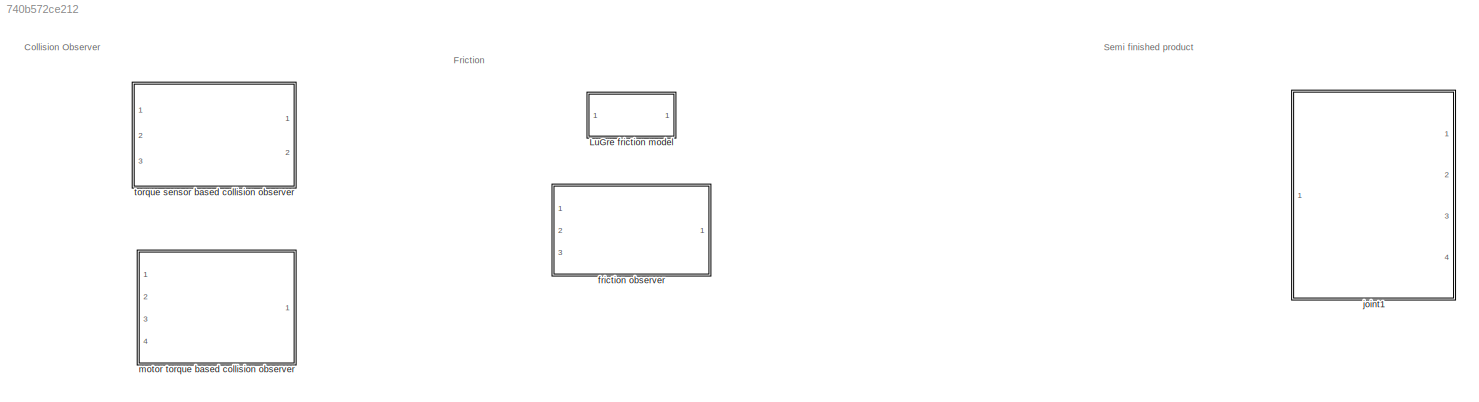
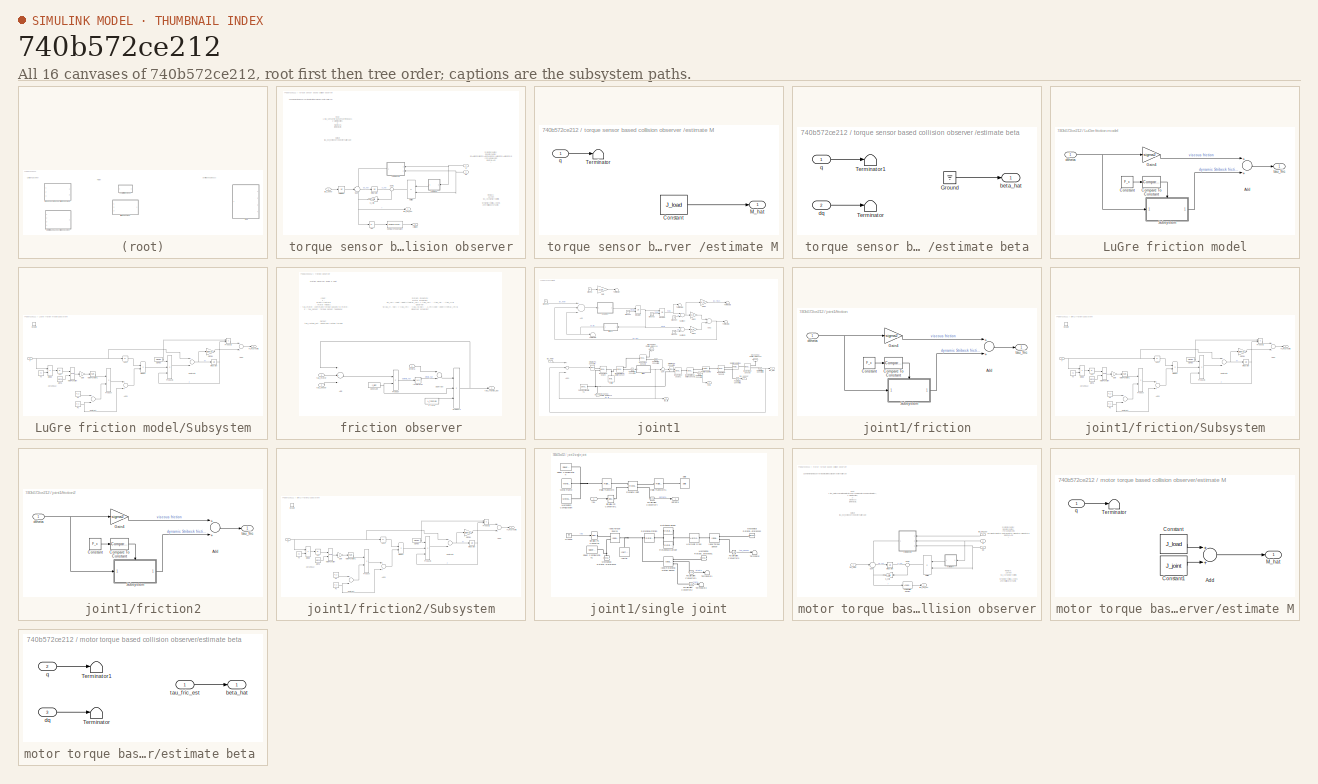
[diagram: thumbnail index - all 16 canvases of the model, root first then tree order]
MODEL slx_740b572ce212
KIND library
CONFIG AbsTol = auto
CONFIG EnableMultiTasking = off
CONFIG FixedStep = auto
CONFIG MaxStep = auto
CONFIG MinStep = auto
CONFIG RelTol = 1e-3
CONFIG SampleTimeConstraint = Unconstrained
CONFIG Solver = VariableStepAuto
CONFIG SolverName = VariableStepAuto
CONFIG StartTime = 0.0
CONFIG StopTime = 10.0
BLOCK [SubSystem]  torque sensor based collision observer 
  Ports = [3, 2]
  RequestExecContextInheritance = off
BLOCK [Abs]  torque sensor based collision observer /Abs
  SaturateOnIntegerOverflow = off
BLOCK [Reference]  torque sensor based collision observer /Compare To Constant  REF=simulink/Logic and Bit
Operations/Compare
To Constant
  Ports = [1, 1]
  SourceBlock = simulink/Logic and Bit\nOperations/Compare\nTo Constant
  SourceProductBaseCode = SL
  SourceProductName = Simulink
  SourceType = Compare To Constant
BLOCK [Integrator]  torque sensor based collision observer /Integrator
  Ports = [1, 1]
BLOCK [Gain]  torque sensor based collision observer /K_colli
  Gain = K0_colli
  OutDataTypeStr = Inherit: Inherit via internal rule
  ParamDataTypeStr = Inherit: Inherit via internal rule
  SaturateOnIntegerOverflow = off
BLOCK [Product]  torque sensor based collision observer /Multiply
  InputSameDT = off
  Multiplication = Matrix(*)
  OutDataTypeStr = Inherit: Inherit via internal rule
  Ports = [2, 1]
  RndMeth = Floor
  SaturateOnIntegerOverflow = off
BLOCK [Sum]  torque sensor based collision observer /Sum
  IconShape = round
  InputSameDT = off
  Inputs = -|+|+
  OutDataTypeStr = Inherit: Inherit via internal rule
  Ports = [3, 1]
  SaturateOnIntegerOverflow = off
BLOCK [Sum]  torque sensor based collision observer /Sum1
  IconShape = round
  InputSameDT = off
  Inputs = -+
  OutDataTypeStr = Inherit: Inherit via internal rule
  Ports = [2, 1]
  SaturateOnIntegerOverflow = off
BLOCK [UnitDelay]  torque sensor based collision observer /Unit Delay
  InputProcessing = Elements as channels (sample based)
  SampleTime = -1
BLOCK [Outport]  torque sensor based collision observer /collision
  IconDisplay = Port number
  Port = 2
BLOCK [Inport]  torque sensor based collision observer /dq
  IconDisplay = Port number
  Port = 3
BLOCK [SubSystem]  torque sensor based collision observer /estimate M
  Ports = [1, 1]
  RequestExecContextInheritance = off
BLOCK [Constant]  torque sensor based collision observer /estimate M/Constant
  Value = J_load
BLOCK [Outport]  torque sensor based collision observer /estimate M/M_hat
  IconDisplay = Port number
BLOCK [Terminator]  torque sensor based collision observer /estimate M/Terminator
BLOCK [Inport]  torque sensor based collision observer /estimate M/q
  IconDisplay = Port number
BLOCK [SubSystem]  torque sensor based collision observer /estimate beta 
  Ports = [2, 1]
  RequestExecContextInheritance = off
BLOCK [Ground]  torque sensor based collision observer /estimate beta /Ground
BLOCK [Terminator]  torque sensor based collision observer /estimate beta /Terminator
BLOCK [Terminator]  torque sensor based collision observer /estimate beta /Terminator1
BLOCK [Outport]  torque sensor based collision observer /estimate beta /beta_hat
  IconDisplay = Port number
BLOCK [Inport]  torque sensor based collision observer /estimate beta /dq
  IconDisplay = Port number
  Port = 2
BLOCK [Inport]  torque sensor based collision observer /estimate beta /q
  IconDisplay = Port number
BLOCK [Inport]  torque sensor based collision observer /q
  IconDisplay = Port number
  Port = 2
BLOCK [Outport]  torque sensor based collision observer /tau_ext_est
  IconDisplay = Port number
BLOCK [Inport]  torque sensor based collision observer /tau_senor
  IconDisplay = Port number
BLOCK [SubSystem] LuGre friction model
  Ports = [1, 1]
  RequestExecContextInheritance = off
BLOCK [Sum] LuGre friction model/Add
  InputSameDT = off
  OutDataTypeStr = Inherit: Inherit via internal rule
  Ports = [2, 1]
  SaturateOnIntegerOverflow = off
BLOCK [Reference] LuGre friction model/Compare To Constant  REF=simulink/Logic and Bit
Operations/Compare
To Constant
  Ports = [1, 1]
  SourceBlock = simulink/Logic and Bit\nOperations/Compare\nTo Constant
  SourceProductBaseCode = SL
  SourceProductName = Simulink
  SourceType = Compare To Constant
BLOCK [Constant] LuGre friction model/Constant
  Value = F_c
BLOCK [Gain] LuGre friction model/Gain4
  Gain = sigma2
  OutDataTypeStr = Inherit: Inherit via internal rule
  ParamDataTypeStr = Inherit: Inherit via internal rule
  SaturateOnIntegerOverflow = off
BLOCK [SubSystem] LuGre friction model/Subsystem
  Ports = [1, 1, 1]
  RequestExecContextInheritance = off
BLOCK [Abs] LuGre friction model/Subsystem/Abs
  SaturateOnIntegerOverflow = off
BLOCK [Abs] LuGre friction model/Subsystem/Abs1
  SaturateOnIntegerOverflow = off
BLOCK [Sum] LuGre friction model/Subsystem/Add1
  InputSameDT = off
  OutDataTypeStr = Inherit: Inherit via internal rule
  Ports = [2, 1]
  SaturateOnIntegerOverflow = off
BLOCK [Sum] LuGre friction model/Subsystem/Add2
  InputSameDT = off
  OutDataTypeStr = Inherit: Inherit via internal rule
  Ports = [2, 1]
  SaturateOnIntegerOverflow = off
BLOCK [Product] LuGre friction model/Subsystem/Divide
  InputSameDT = off
  Inputs = */
  OutDataTypeStr = Inherit: Inherit via internal rule
  Ports = [2, 1]
  RndMeth = Floor
  SaturateOnIntegerOverflow = off
BLOCK [Product] LuGre friction model/Subsystem/Divide1
  InputSameDT = off
  Inputs = */
  OutDataTypeStr = Inherit: Inherit via internal rule
  Ports = [2, 1]
  RndMeth = Floor
  SaturateOnIntegerOverflow = off
BLOCK [EnablePort] LuGre friction model/Subsystem/Enable
  Ports = []
  StatesWhenEnabling = reset
BLOCK [Outport] LuGre friction model/Subsystem/F_fric dynamic
  IconDisplay = Port number
  InitialOutput = 0
  OutputWhenDisabled = reset
BLOCK [Constant] LuGre friction model/Subsystem/Fc
  Value = F_c
BLOCK [Constant] LuGre friction model/Subsystem/Fs
  Value = F_s
BLOCK [Gain] LuGre friction model/Subsystem/Gain
  Gain = -1
  OutDataTypeStr = Inherit: Inherit via internal rule
  ParamDataTypeStr = Inherit: Inherit via internal rule
  SaturateOnIntegerOverflow = off
BLOCK [Integrator] LuGre friction model/Subsystem/Integrator
  Ports = [1, 1]
BLOCK [Math] LuGre friction model/Subsystem/Math Function
  Operator = pow
  Ports = [2, 1]
BLOCK [Math] LuGre friction model/Subsystem/Math Function1
  Ports = [1, 1]
BLOCK [Product] LuGre friction model/Subsystem/Product
  InputSameDT = off
  OutDataTypeStr = Inherit: Inherit via internal rule
  Ports = [2, 1]
  RndMeth = Floor
  SaturateOnIntegerOverflow = off
BLOCK [Product] LuGre friction model/Subsystem/Product1
  InputSameDT = off
  Inputs = 3
  OutDataTypeStr = Inherit: Inherit via internal rule
  Ports = [3, 1]
  RndMeth = Floor
  SaturateOnIntegerOverflow = off
BLOCK [Product] LuGre friction model/Subsystem/Product2
  InputSameDT = off
  OutDataTypeStr = Inherit: Inherit via internal rule
  Ports = [2, 1]
  RndMeth = Floor
  SaturateOnIntegerOverflow = off
BLOCK [Sum] LuGre friction model/Subsystem/Subtract
  InputSameDT = off
  Inputs = +-
  OutDataTypeStr = Inherit: Inherit via internal rule
  Ports = [2, 1]
  SaturateOnIntegerOverflow = off
BLOCK [Sum] LuGre friction model/Subsystem/Subtract1
  InputSameDT = off
  Inputs = +-
  OutDataTypeStr = Inherit: Inherit via internal rule
  Ports = [2, 1]
  SaturateOnIntegerOverflow = off
BLOCK [Constant] LuGre friction model/Subsystem/alpha
  Value = alpha
BLOCK [Constant] LuGre friction model/Subsystem/sigma0
  Value = sigma0
BLOCK [Gain] LuGre friction model/Subsystem/sigma1
  Gain = sigma1
  OutDataTypeStr = Inherit: Inherit via internal rule
  ParamDataTypeStr = Inherit: Inherit via internal rule
  SaturateOnIntegerOverflow = off
BLOCK [Inport] LuGre friction model/Subsystem/v
  IconDisplay = Port number
BLOCK [Constant] LuGre friction model/Subsystem/vs
  Value = vs
BLOCK [Inport] LuGre friction model/dtheta
  IconDisplay = Port number
BLOCK [Outport] LuGre friction model/tau_fric
  IconDisplay = Port number
BLOCK [SubSystem] friction observer
  Ports = [3, 1]
  RequestExecContextInheritance = off
BLOCK [Sum] friction observer/Add
  InputSameDT = off
  Inputs = -+-
  OutDataTypeStr = Inherit: Inherit via internal rule
  Ports = [3, 1]
  SaturateOnIntegerOverflow = off
BLOCK [Constant] friction observer/Constant
  Value = J_joint
BLOCK [Integrator] friction observer/Integrator
  Ports = [1, 1]
BLOCK [Constant] friction observer/L (1//s)
  Value = L_fricObs
BLOCK [Product] friction observer/Product
  InputSameDT = off
  Inputs = */
  OutDataTypeStr = Inherit: Inherit via internal rule
  Ports = [2, 1]
  RndMeth = Floor
  SaturateOnIntegerOverflow = off
BLOCK [Product] friction observer/Product1
  InputSameDT = off
  Inputs = 3
  OutDataTypeStr = Inherit: Inherit via internal rule
  Ports = [3, 1]
  RndMeth = Floor
  SaturateOnIntegerOverflow = off
BLOCK [Sum] friction observer/Subtract
  InputSameDT = off
  Inputs = -+
  OutDataTypeStr = Inherit: Inherit via internal rule
  Ports = [2, 1]
  SaturateOnIntegerOverflow = off
BLOCK [Inport] friction observer/dtheta
  IconDisplay = Port number
BLOCK [Outport] friction observer/tau_friction_est
  IconDisplay = Port number
BLOCK [Inport] friction observer/tau_motor
  IconDisplay = Port number
  Port = 2
BLOCK [Inport] friction observer/tau_sensor
  IconDisplay = Port number
  Port = 3
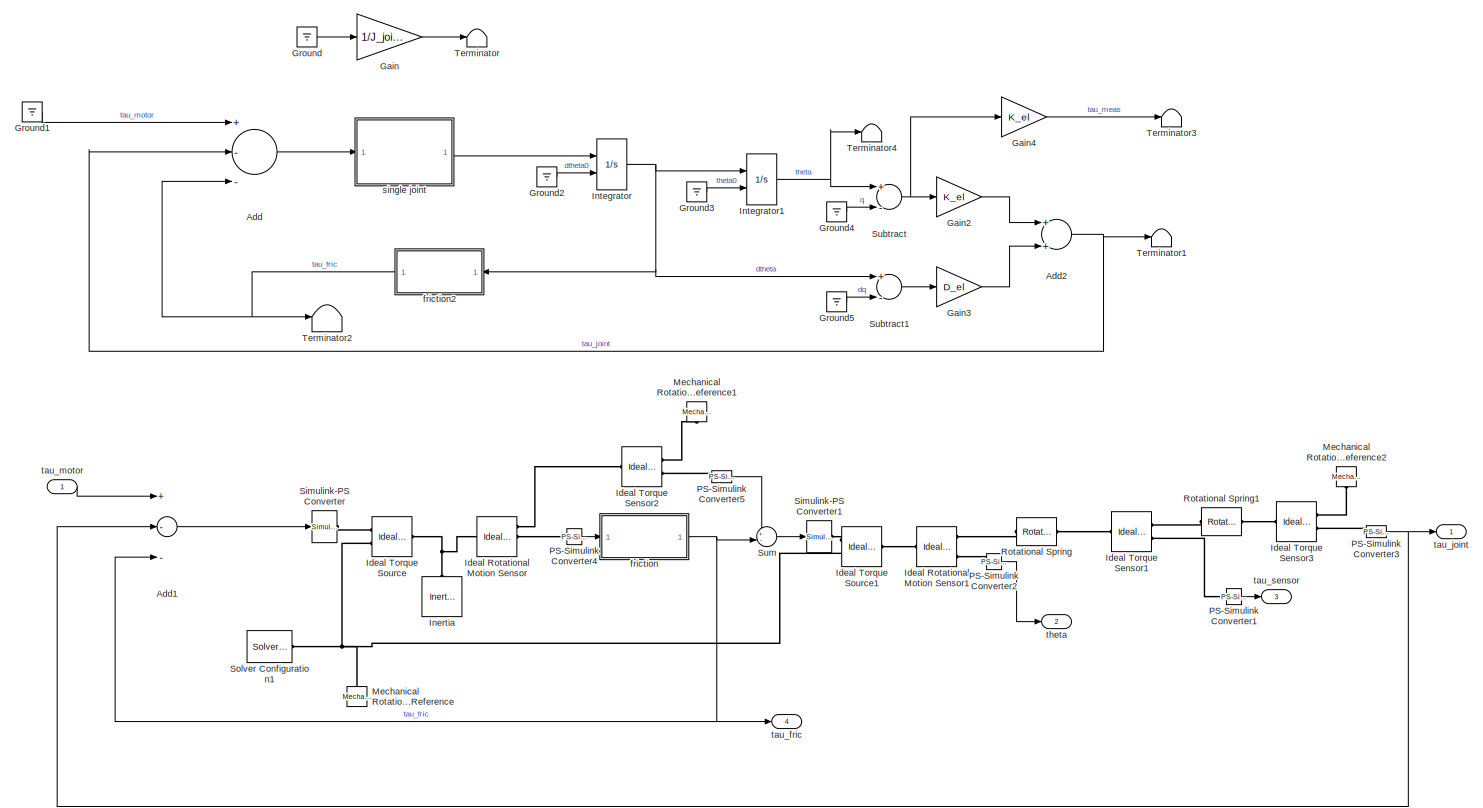
[diagram: joint1 - part 1/1, most of the canvas]
BLOCK [SubSystem] joint1
  Commented = on
  Ports = [1, 4]
  RequestExecContextInheritance = off
BLOCK [Sum] joint1/Add
  Commented = on
  InputSameDT = off
  Inputs = +--
  OutDataTypeStr = Inherit: Inherit via internal rule
  Ports = [3, 1]
  SaturateOnIntegerOverflow = off
BLOCK [Sum] joint1/Add1
  InputSameDT = off
  Inputs = +--
  OutDataTypeStr = Inherit: Inherit via internal rule
  Ports = [3, 1]
  SaturateOnIntegerOverflow = off
BLOCK [Sum] joint1/Add2
  Commented = on
  InputSameDT = off
  OutDataTypeStr = Inherit: Inherit via internal rule
  Ports = [2, 1]
  SaturateOnIntegerOverflow = off
BLOCK [Gain] joint1/Gain
  Commented = on
  Gain = 1/J_joint
  OutDataTypeStr = Inherit: Inherit via internal rule
  ParamDataTypeStr = Inherit: Inherit via internal rule
  SaturateOnIntegerOverflow = off
BLOCK [Gain] joint1/Gain2
  Commented = on
  Gain = K_el
  OutDataTypeStr = Inherit: Inherit via internal rule
  ParamDataTypeStr = Inherit: Inherit via internal rule
  SaturateOnIntegerOverflow = off
BLOCK [Gain] joint1/Gain3
  Commented = on
  Gain = D_el
  OutDataTypeStr = Inherit: Inherit via internal rule
  ParamDataTypeStr = Inherit: Inherit via internal rule
  SaturateOnIntegerOverflow = off
BLOCK [Gain] joint1/Gain4
  Commented = on
  Gain = K_el
  OutDataTypeStr = Inherit: Inherit via internal rule
  ParamDataTypeStr = Inherit: Inherit via internal rule
  SaturateOnIntegerOverflow = off
BLOCK [Ground] joint1/Ground
  Commented = on
BLOCK [Ground] joint1/Ground1
  Commented = on
BLOCK [Ground] joint1/Ground2
  Commented = on
BLOCK [Ground] joint1/Ground3
  Commented = on
BLOCK [Ground] joint1/Ground4
  Commented = on
BLOCK [Ground] joint1/Ground5
  Commented = on
BLOCK [Reference] joint1/Ideal Rotational Motion Sensor  REF=fl_lib/Mechanical/Mechanical Sensors/Ideal Rotational
Motion Sensor
  Ports = [0, 0, 0, 0, 0, 1, 3]
  SourceBlock = fl_lib/Mechanical/Mechanical Sensors/Ideal Rotational\nMotion Sensor
  SourceProductBaseCode = SS
  SourceProductName = Simscape
  SourceType = Ideal Rotational\nMotion Sensor
BLOCK [Reference] joint1/Ideal Rotational Motion Sensor1  REF=fl_lib/Mechanical/Mechanical Sensors/Ideal Rotational
Motion Sensor
  Ports = [0, 0, 0, 0, 0, 1, 3]
  SourceBlock = fl_lib/Mechanical/Mechanical Sensors/Ideal Rotational\nMotion Sensor
  SourceProductBaseCode = SS
  SourceProductName = Simscape
  SourceType = Ideal Rotational\nMotion Sensor
BLOCK [Reference] joint1/Ideal Torque Sensor1  REF=fl_lib/Mechanical/Mechanical Sensors/Ideal Torque Sensor
  Ports = [0, 0, 0, 0, 0, 1, 2]
  SourceBlock = fl_lib/Mechanical/Mechanical Sensors/Ideal Torque Sensor
  SourceProductBaseCode = SS
  SourceProductName = Simscape
  SourceType = Ideal Torque Sensor
BLOCK [Reference] joint1/Ideal Torque Sensor2  REF=fl_lib/Mechanical/Mechanical Sensors/Ideal Torque Sensor
  Ports = [0, 0, 0, 0, 0, 1, 2]
  SourceBlock = fl_lib/Mechanical/Mechanical Sensors/Ideal Torque Sensor
  SourceProductBaseCode = SS
  SourceProductName = Simscape
  SourceType = Ideal Torque Sensor
BLOCK [Reference] joint1/Ideal Torque Sensor3  REF=fl_lib/Mechanical/Mechanical Sensors/Ideal Torque Sensor
  Ports = [0, 0, 0, 0, 0, 1, 2]
  SourceBlock = fl_lib/Mechanical/Mechanical Sensors/Ideal Torque Sensor
  SourceProductBaseCode = SS
  SourceProductName = Simscape
  SourceType = Ideal Torque Sensor
BLOCK [Reference] joint1/Ideal Torque Source  REF=fl_lib/Mechanical/Mechanical Sources/Ideal Torque Source
  Ports = [0, 0, 0, 0, 0, 1, 2]
  SourceBlock = fl_lib/Mechanical/Mechanical Sources/Ideal Torque Source
  SourceProductBaseCode = SS
  SourceProductName = Simscape
  SourceType = Ideal Torque Source
BLOCK [Reference] joint1/Ideal Torque Source1  REF=fl_lib/Mechanical/Mechanical Sources/Ideal Torque Source
  Ports = [0, 0, 0, 0, 0, 1, 2]
  SourceBlock = fl_lib/Mechanical/Mechanical Sources/Ideal Torque Source
  SourceProductBaseCode = SS
  SourceProductName = Simscape
  SourceType = Ideal Torque Source
BLOCK [Reference] joint1/Inertia  REF=fl_lib/Mechanical/Rotational Elements/Inertia
  Ports = [0, 0, 0, 0, 0, 1]
  SourceBlock = fl_lib/Mechanical/Rotational Elements/Inertia
  SourceProductBaseCode = SS
  SourceProductName = Simscape
  SourceType = Inertia
BLOCK [Integrator] joint1/Integrator
  Commented = on
  InitialConditionSource = external
  Ports = [2, 1]
BLOCK [Integrator] joint1/Integrator1
  Commented = on
  InitialConditionSource = external
  Ports = [2, 1]
BLOCK [Reference] joint1/Mechanical Rotational Reference  REF=fl_lib/Mechanical/Rotational Elements/Mechanical
Rotational Reference
  Ports = [0, 0, 0, 0, 0, 1]
  SourceBlock = fl_lib/Mechanical/Rotational Elements/Mechanical\nRotational Reference
  SourceProductBaseCode = SS
  SourceProductName = Simscape
  SourceType = Mechanical\nRotational Reference
BLOCK [Reference] joint1/Mechanical Rotational Reference1  REF=fl_lib/Mechanical/Rotational Elements/Mechanical
Rotational Reference
  Ports = [0, 0, 0, 0, 0, 1]
  SourceBlock = fl_lib/Mechanical/Rotational Elements/Mechanical\nRotational Reference
  SourceProductBaseCode = SS
  SourceProductName = Simscape
  SourceType = Mechanical\nRotational Reference
BLOCK [Reference] joint1/Mechanical Rotational Reference2  REF=fl_lib/Mechanical/Rotational Elements/Mechanical
Rotational Reference
  Ports = [0, 0, 0, 0, 0, 1]
  SourceBlock = fl_lib/Mechanical/Rotational Elements/Mechanical\nRotational Reference
  SourceProductBaseCode = SS
  SourceProductName = Simscape
  SourceType = Mechanical\nRotational Reference
BLOCK [Reference] joint1/PS-Simulink Converter1  REF=nesl_utility/PS-Simulink
Converter
  Ports = [0, 1, 0, 0, 0, 1]
  SourceBlock = nesl_utility/PS-Simulink\nConverter
  SourceProductBaseCode = SS
  SourceProductName = Simscape
  SourceType = PS-Simulink\nConverter
BLOCK [Reference] joint1/PS-Simulink Converter2  REF=nesl_utility/PS-Simulink
Converter
  Ports = [0, 1, 0, 0, 0, 1]
  SourceBlock = nesl_utility/PS-Simulink\nConverter
  SourceProductBaseCode = SS
  SourceProductName = Simscape
  SourceType = PS-Simulink\nConverter
BLOCK [Reference] joint1/PS-Simulink Converter3  REF=nesl_utility/PS-Simulink
Converter
  Ports = [0, 1, 0, 0, 0, 1]
  SourceBlock = nesl_utility/PS-Simulink\nConverter
  SourceProductBaseCode = SS
  SourceProductName = Simscape
  SourceType = PS-Simulink\nConverter
BLOCK [Reference] joint1/PS-Simulink Converter4  REF=nesl_utility/PS-Simulink
Converter
  Ports = [0, 1, 0, 0, 0, 1]
  SourceBlock = nesl_utility/PS-Simulink\nConverter
  SourceProductBaseCode = SS
  SourceProductName = Simscape
  SourceType = PS-Simulink\nConverter
BLOCK [Reference] joint1/PS-Simulink Converter5  REF=nesl_utility/PS-Simulink
Converter
  Ports = [0, 1, 0, 0, 0, 1]
  SourceBlock = nesl_utility/PS-Simulink\nConverter
  SourceProductBaseCode = SS
  SourceProductName = Simscape
  SourceType = PS-Simulink\nConverter
BLOCK [Reference] joint1/Rotational Spring  REF=fl_lib/Mechanical/Rotational Elements/Rotational Spring
  Ports = [0, 0, 0, 0, 0, 1, 1]
  SourceBlock = fl_lib/Mechanical/Rotational Elements/Rotational Spring
  SourceProductBaseCode = SS
  SourceProductName = Simscape
  SourceType = Rotational Spring
BLOCK [Reference] joint1/Rotational Spring1  REF=fl_lib/Mechanical/Rotational Elements/Rotational Spring
  Ports = [0, 0, 0, 0, 0, 1, 1]
  SourceBlock = fl_lib/Mechanical/Rotational Elements/Rotational Spring
  SourceProductBaseCode = SS
  SourceProductName = Simscape
  SourceType = Rotational Spring
BLOCK [Reference] joint1/Simulink-PS Converter  REF=nesl_utility/Simulink-PS
Converter
  Ports = [1, 0, 0, 0, 0, 0, 1]
  SourceBlock = nesl_utility/Simulink-PS\nConverter
  SourceProductBaseCode = SS
  SourceProductName = Simscape
  SourceType = Simulink-PS\nConverter
BLOCK [Reference] joint1/Simulink-PS Converter1  REF=nesl_utility/Simulink-PS
Converter
  Ports = [1, 0, 0, 0, 0, 0, 1]
  SourceBlock = nesl_utility/Simulink-PS\nConverter
  SourceProductBaseCode = SS
  SourceProductName = Simscape
  SourceType = Simulink-PS\nConverter
BLOCK [Reference] joint1/Solver Configuration1  REF=nesl_utility/Solver
Configuration
  Ports = [0, 0, 0, 0, 0, 0, 1]
  SourceBlock = nesl_utility/Solver\nConfiguration
  SourceProductBaseCode = SS
  SourceProductName = Simscape
  SourceType = Solver\nConfiguration
BLOCK [Sum] joint1/Subtract
  Commented = on
  InputSameDT = off
  Inputs = +-
  OutDataTypeStr = Inherit: Inherit via internal rule
  Ports = [2, 1]
  SaturateOnIntegerOverflow = off
BLOCK [Sum] joint1/Subtract1
  Commented = on
  InputSameDT = off
  Inputs = +-
  OutDataTypeStr = Inherit: Inherit via internal rule
  Ports = [2, 1]
  SaturateOnIntegerOverflow = off
BLOCK [Sum] joint1/Sum
  IconShape = round
  InputSameDT = off
  Inputs = +-|
  OutDataTypeStr = Inherit: Inherit via internal rule
  Ports = [2, 1]
  SaturateOnIntegerOverflow = off
BLOCK [Terminator] joint1/Terminator
  Commented = on
BLOCK [Terminator] joint1/Terminator1
  Commented = on
BLOCK [Terminator] joint1/Terminator2
  Commented = on
BLOCK [Terminator] joint1/Terminator3
  Commented = on
BLOCK [Terminator] joint1/Terminator4
  Commented = on
BLOCK [SubSystem] joint1/friction
  Ports = [1, 1]
  RequestExecContextInheritance = off
BLOCK [Sum] joint1/friction/Add
  InputSameDT = off
  OutDataTypeStr = Inherit: Inherit via internal rule
  Ports = [2, 1]
  SaturateOnIntegerOverflow = off
BLOCK [Reference] joint1/friction/Compare To Constant  REF=simulink/Logic and Bit
Operations/Compare
To Constant
  Ports = [1, 1]
  SourceBlock = simulink/Logic and Bit\nOperations/Compare\nTo Constant
  SourceProductBaseCode = SL
  SourceProductName = Simulink
  SourceType = Compare To Constant
BLOCK [Constant] joint1/friction/Constant
  Value = F_c
BLOCK [Gain] joint1/friction/Gain4
  Gain = sigma2
  OutDataTypeStr = Inherit: Inherit via internal rule
  ParamDataTypeStr = Inherit: Inherit via internal rule
  SaturateOnIntegerOverflow = off
BLOCK [SubSystem] joint1/friction/Subsystem
  Ports = [1, 1, 1]
  RequestExecContextInheritance = off
BLOCK [Abs] joint1/friction/Subsystem/Abs
  SaturateOnIntegerOverflow = off
BLOCK [Abs] joint1/friction/Subsystem/Abs1
  SaturateOnIntegerOverflow = off
BLOCK [Sum] joint1/friction/Subsystem/Add1
  InputSameDT = off
  OutDataTypeStr = Inherit: Inherit via internal rule
  Ports = [2, 1]
  SaturateOnIntegerOverflow = off
BLOCK [Sum] joint1/friction/Subsystem/Add2
  InputSameDT = off
  OutDataTypeStr = Inherit: Inherit via internal rule
  Ports = [2, 1]
  SaturateOnIntegerOverflow = off
BLOCK [Product] joint1/friction/Subsystem/Divide
  InputSameDT = off
  Inputs = */
  OutDataTypeStr = Inherit: Inherit via internal rule
  Ports = [2, 1]
  RndMeth = Floor
  SaturateOnIntegerOverflow = off
BLOCK [Product] joint1/friction/Subsystem/Divide1
  InputSameDT = off
  Inputs = */
  OutDataTypeStr = Inherit: Inherit via internal rule
  Ports = [2, 1]
  RndMeth = Floor
  SaturateOnIntegerOverflow = off
BLOCK [EnablePort] joint1/friction/Subsystem/Enable
  Ports = []
  StatesWhenEnabling = reset
BLOCK [Outport] joint1/friction/Subsystem/F_fric dynamic
  IconDisplay = Port number
  InitialOutput = 0
  OutputWhenDisabled = reset
BLOCK [Constant] joint1/friction/Subsystem/Fc
  Value = F_c
BLOCK [Constant] joint1/friction/Subsystem/Fs
  Value = F_s
BLOCK [Gain] joint1/friction/Subsystem/Gain
  Gain = -1
  OutDataTypeStr = Inherit: Inherit via internal rule
  ParamDataTypeStr = Inherit: Inherit via internal rule
  SaturateOnIntegerOverflow = off
BLOCK [Integrator] joint1/friction/Subsystem/Integrator
  Ports = [1, 1]
BLOCK [Math] joint1/friction/Subsystem/Math Function
  Operator = pow
  Ports = [2, 1]
BLOCK [Math] joint1/friction/Subsystem/Math Function1
  Ports = [1, 1]
BLOCK [Product] joint1/friction/Subsystem/Product
  InputSameDT = off
  OutDataTypeStr = Inherit: Inherit via internal rule
  Ports = [2, 1]
  RndMeth = Floor
  SaturateOnIntegerOverflow = off
BLOCK [Product] joint1/friction/Subsystem/Product1
  InputSameDT = off
  Inputs = 3
  OutDataTypeStr = Inherit: Inherit via internal rule
  Ports = [3, 1]
  RndMeth = Floor
  SaturateOnIntegerOverflow = off
BLOCK [Product] joint1/friction/Subsystem/Product2
  InputSameDT = off
  OutDataTypeStr = Inherit: Inherit via internal rule
  Ports = [2, 1]
  RndMeth = Floor
  SaturateOnIntegerOverflow = off
BLOCK [Sum] joint1/friction/Subsystem/Subtract
  InputSameDT = off
  Inputs = +-
  OutDataTypeStr = Inherit: Inherit via internal rule
  Ports = [2, 1]
  SaturateOnIntegerOverflow = off
BLOCK [Sum] joint1/friction/Subsystem/Subtract1
  InputSameDT = off
  Inputs = +-
  OutDataTypeStr = Inherit: Inherit via internal rule
  Ports = [2, 1]
  SaturateOnIntegerOverflow = off
BLOCK [Constant] joint1/friction/Subsystem/alpha
  Value = alpha
BLOCK [Constant] joint1/friction/Subsystem/sigma0
  Value = sigma0
BLOCK [Gain] joint1/friction/Subsystem/sigma1
  Gain = sigma1
  OutDataTypeStr = Inherit: Inherit via internal rule
  ParamDataTypeStr = Inherit: Inherit via internal rule
  SaturateOnIntegerOverflow = off
BLOCK [Inport] joint1/friction/Subsystem/v
  IconDisplay = Port number
BLOCK [Constant] joint1/friction/Subsystem/vs
  Value = vs
BLOCK [Inport] joint1/friction/dtheta
  IconDisplay = Port number
BLOCK [Outport] joint1/friction/tau_fric
  IconDisplay = Port number
BLOCK [SubSystem] joint1/friction2
  Commented = on
  Ports = [1, 1]
  RequestExecContextInheritance = off
BLOCK [Sum] joint1/friction2/Add
  InputSameDT = off
  OutDataTypeStr = Inherit: Inherit via internal rule
  Ports = [2, 1]
  SaturateOnIntegerOverflow = off
BLOCK [Reference] joint1/friction2/Compare To Constant  REF=simulink/Logic and Bit
Operations/Compare
To Constant
  Ports = [1, 1]
  SourceBlock = simulink/Logic and Bit\nOperations/Compare\nTo Constant
  SourceProductBaseCode = SL
  SourceProductName = Simulink
  SourceType = Compare To Constant
BLOCK [Constant] joint1/friction2/Constant
  Value = F_c
BLOCK [Gain] joint1/friction2/Gain4
  Gain = sigma2
  OutDataTypeStr = Inherit: Inherit via internal rule
  ParamDataTypeStr = Inherit: Inherit via internal rule
  SaturateOnIntegerOverflow = off
BLOCK [SubSystem] joint1/friction2/Subsystem
  Ports = [1, 1, 1]
  RequestExecContextInheritance = off
BLOCK [Abs] joint1/friction2/Subsystem/Abs
  SaturateOnIntegerOverflow = off
BLOCK [Abs] joint1/friction2/Subsystem/Abs1
  SaturateOnIntegerOverflow = off
BLOCK [Sum] joint1/friction2/Subsystem/Add1
  InputSameDT = off
  OutDataTypeStr = Inherit: Inherit via internal rule
  Ports = [2, 1]
  SaturateOnIntegerOverflow = off
BLOCK [Sum] joint1/friction2/Subsystem/Add2
  InputSameDT = off
  OutDataTypeStr = Inherit: Inherit via internal rule
  Ports = [2, 1]
  SaturateOnIntegerOverflow = off
BLOCK [Product] joint1/friction2/Subsystem/Divide
  InputSameDT = off
  Inputs = */
  OutDataTypeStr = Inherit: Inherit via internal rule
  Ports = [2, 1]
  RndMeth = Floor
  SaturateOnIntegerOverflow = off
BLOCK [Product] joint1/friction2/Subsystem/Divide1
  InputSameDT = off
  Inputs = */
  OutDataTypeStr = Inherit: Inherit via internal rule
  Ports = [2, 1]
  RndMeth = Floor
  SaturateOnIntegerOverflow = off
BLOCK [EnablePort] joint1/friction2/Subsystem/Enable
  Ports = []
  StatesWhenEnabling = reset
BLOCK [Outport] joint1/friction2/Subsystem/F_fric dynamic
  IconDisplay = Port number
  InitialOutput = 0
  OutputWhenDisabled = reset
BLOCK [Constant] joint1/friction2/Subsystem/Fc
  Value = F_c
BLOCK [Constant] joint1/friction2/Subsystem/Fs
  Value = F_s
BLOCK [Gain] joint1/friction2/Subsystem/Gain
  Gain = -1
  OutDataTypeStr = Inherit: Inherit via internal rule
  ParamDataTypeStr = Inherit: Inherit via internal rule
  SaturateOnIntegerOverflow = off
BLOCK [Integrator] joint1/friction2/Subsystem/Integrator
  Ports = [1, 1]
BLOCK [Math] joint1/friction2/Subsystem/Math Function
  Operator = pow
  Ports = [2, 1]
BLOCK [Math] joint1/friction2/Subsystem/Math Function1
  Ports = [1, 1]
BLOCK [Product] joint1/friction2/Subsystem/Product
  InputSameDT = off
  OutDataTypeStr = Inherit: Inherit via internal rule
  Ports = [2, 1]
  RndMeth = Floor
  SaturateOnIntegerOverflow = off
BLOCK [Product] joint1/friction2/Subsystem/Product1
  InputSameDT = off
  Inputs = 3
  OutDataTypeStr = Inherit: Inherit via internal rule
  Ports = [3, 1]
  RndMeth = Floor
  SaturateOnIntegerOverflow = off
BLOCK [Product] joint1/friction2/Subsystem/Product2
  InputSameDT = off
  OutDataTypeStr = Inherit: Inherit via internal rule
  Ports = [2, 1]
  RndMeth = Floor
  SaturateOnIntegerOverflow = off
BLOCK [Sum] joint1/friction2/Subsystem/Subtract
  InputSameDT = off
  Inputs = +-
  OutDataTypeStr = Inherit: Inherit via internal rule
  Ports = [2, 1]
  SaturateOnIntegerOverflow = off
BLOCK [Sum] joint1/friction2/Subsystem/Subtract1
  InputSameDT = off
  Inputs = +-
  OutDataTypeStr = Inherit: Inherit via internal rule
  Ports = [2, 1]
  SaturateOnIntegerOverflow = off
BLOCK [Constant] joint1/friction2/Subsystem/alpha
  Value = alpha
BLOCK [Constant] joint1/friction2/Subsystem/sigma0
  Value = sigma0
BLOCK [Gain] joint1/friction2/Subsystem/sigma1
  Gain = sigma1
  OutDataTypeStr = Inherit: Inherit via internal rule
  ParamDataTypeStr = Inherit: Inherit via internal rule
  SaturateOnIntegerOverflow = off
BLOCK [Inport] joint1/friction2/Subsystem/v
  IconDisplay = Port number
BLOCK [Constant] joint1/friction2/Subsystem/vs
  Value = vs
BLOCK [Inport] joint1/friction2/dtheta
  IconDisplay = Port number
BLOCK [Outport] joint1/friction2/tau_fric
  IconDisplay = Port number
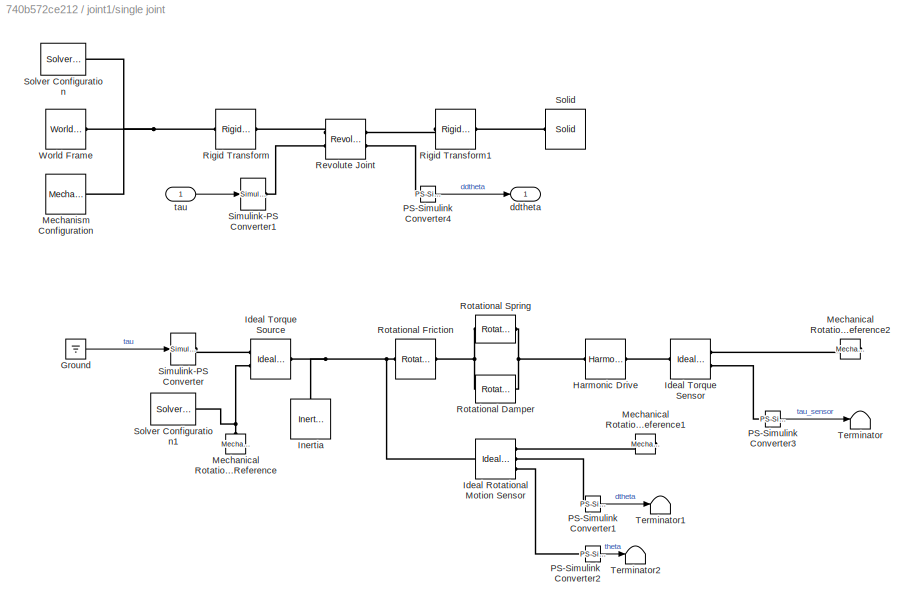
BLOCK [SubSystem] joint1/single joint
  Commented = on
  Ports = [1, 1]
  RequestExecContextInheritance = off
BLOCK [Ground] joint1/single joint/Ground
  Commented = on
BLOCK [Reference] joint1/single joint/Harmonic Drive  REF=sdl_lib/Gears/Harmonic Drive
  Commented = on
  Ports = [0, 0, 0, 0, 0, 1, 1]
  SourceBlock = sdl_lib/Gears/Harmonic Drive
  SourceProductBaseCode = LD
  SourceProductName = Simscape Driveline
  SourceType = Harmonic Drive
BLOCK [Reference] joint1/single joint/Ideal Rotational Motion Sensor  REF=fl_lib/Mechanical/Mechanical Sensors/Ideal Rotational
Motion Sensor
  Commented = on
  Ports = [0, 0, 0, 0, 0, 1, 3]
  SourceBlock = fl_lib/Mechanical/Mechanical Sensors/Ideal Rotational\nMotion Sensor
  SourceProductBaseCode = SS
  SourceProductName = Simscape
  SourceType = Ideal Rotational\nMotion Sensor
BLOCK [Reference] joint1/single joint/Ideal Torque Sensor  REF=fl_lib/Mechanical/Mechanical Sensors/Ideal Torque Sensor
  Commented = on
  Ports = [0, 0, 0, 0, 0, 1, 2]
  SourceBlock = fl_lib/Mechanical/Mechanical Sensors/Ideal Torque Sensor
  SourceProductBaseCode = SS
  SourceProductName = Simscape
  SourceType = Ideal Torque Sensor
BLOCK [Reference] joint1/single joint/Ideal Torque Source  REF=fl_lib/Mechanical/Mechanical Sources/Ideal Torque Source
  Commented = on
  Ports = [0, 0, 0, 0, 0, 1, 2]
  SourceBlock = fl_lib/Mechanical/Mechanical Sources/Ideal Torque Source
  SourceProductBaseCode = SS
  SourceProductName = Simscape
  SourceType = Ideal Torque Source
BLOCK [Reference] joint1/single joint/Inertia  REF=fl_lib/Mechanical/Rotational Elements/Inertia
  Commented = on
  Ports = [0, 0, 0, 0, 0, 1]
  SourceBlock = fl_lib/Mechanical/Rotational Elements/Inertia
  SourceProductBaseCode = SS
  SourceProductName = Simscape
  SourceType = Inertia
BLOCK [Reference] joint1/single joint/Mechanical Rotational Reference  REF=fl_lib/Mechanical/Rotational Elements/Mechanical
Rotational Reference
  Commented = on
  Ports = [0, 0, 0, 0, 0, 1]
  SourceBlock = fl_lib/Mechanical/Rotational Elements/Mechanical\nRotational Reference
  SourceProductBaseCode = SS
  SourceProductName = Simscape
  SourceType = Mechanical\nRotational Reference
BLOCK [Reference] joint1/single joint/Mechanical Rotational Reference1  REF=fl_lib/Mechanical/Rotational Elements/Mechanical
Rotational Reference
  Commented = on
  Ports = [0, 0, 0, 0, 0, 1]
  SourceBlock = fl_lib/Mechanical/Rotational Elements/Mechanical\nRotational Reference
  SourceProductBaseCode = SS
  SourceProductName = Simscape
  SourceType = Mechanical\nRotational Reference
BLOCK [Reference] joint1/single joint/Mechanical Rotational Reference2  REF=fl_lib/Mechanical/Rotational Elements/Mechanical
Rotational Reference
  Commented = on
  Ports = [0, 0, 0, 0, 0, 1]
  SourceBlock = fl_lib/Mechanical/Rotational Elements/Mechanical\nRotational Reference
  SourceProductBaseCode = SS
  SourceProductName = Simscape
  SourceType = Mechanical\nRotational Reference
BLOCK [Reference] joint1/single joint/Mechanism Configuration  REF=sm_lib/Utilities/Mechanism
Configuration
  Commented = on
  Ports = [0, 0, 0, 0, 0, 0, 1]
  SourceBlock = sm_lib/Utilities/Mechanism\nConfiguration
  SourceProductBaseCode = MS
  SourceProductName = Simscape Multibody
  SourceType = Mechanism\nConfiguration
BLOCK [Reference] joint1/single joint/PS-Simulink Converter1  REF=nesl_utility/PS-Simulink
Converter
  Commented = on
  Ports = [0, 1, 0, 0, 0, 1]
  SourceBlock = nesl_utility/PS-Simulink\nConverter
  SourceProductBaseCode = SS
  SourceProductName = Simscape
  SourceType = PS-Simulink\nConverter
BLOCK [Reference] joint1/single joint/PS-Simulink Converter2  REF=nesl_utility/PS-Simulink
Converter
  Commented = on
  Ports = [0, 1, 0, 0, 0, 1]
  SourceBlock = nesl_utility/PS-Simulink\nConverter
  SourceProductBaseCode = SS
  SourceProductName = Simscape
  SourceType = PS-Simulink\nConverter
BLOCK [Reference] joint1/single joint/PS-Simulink Converter3  REF=nesl_utility/PS-Simulink
Converter
  Commented = on
  Ports = [0, 1, 0, 0, 0, 1]
  SourceBlock = nesl_utility/PS-Simulink\nConverter
  SourceProductBaseCode = SS
  SourceProductName = Simscape
  SourceType = PS-Simulink\nConverter
BLOCK [Reference] joint1/single joint/PS-Simulink Converter4  REF=nesl_utility/PS-Simulink
Converter
  Commented = on
  Ports = [0, 1, 0, 0, 0, 1]
  SourceBlock = nesl_utility/PS-Simulink\nConverter
  SourceProductBaseCode = SS
  SourceProductName = Simscape
  SourceType = PS-Simulink\nConverter
BLOCK [Reference] joint1/single joint/Revolute Joint  REF=sm_lib/Joints/Revolute Joint
  Commented = on
  Ports = [0, 0, 0, 0, 0, 2, 2]
  SourceBlock = sm_lib/Joints/Revolute Joint
  SourceProductBaseCode = MS
  SourceProductName = Simscape Multibody
  SourceType = Revolute Joint
BLOCK [Reference] joint1/single joint/Rigid Transform  REF=sm_lib/Frames and
Transforms/Rigid
Transform
  Commented = on
  Ports = [0, 0, 0, 0, 0, 1, 1]
  SourceBlock = sm_lib/Frames and\nTransforms/Rigid\nTransform
  SourceProductBaseCode = MS
  SourceProductName = Simscape Multibody
  SourceType = Rigid\nTransform
BLOCK [Reference] joint1/single joint/Rigid Transform1  REF=sm_lib/Frames and
Transforms/Rigid
Transform
  Commented = on
  Ports = [0, 0, 0, 0, 0, 1, 1]
  SourceBlock = sm_lib/Frames and\nTransforms/Rigid\nTransform
  SourceProductBaseCode = MS
  SourceProductName = Simscape Multibody
  SourceType = Rigid\nTransform
BLOCK [Reference] joint1/single joint/Rotational Damper  REF=sdl_lib/Couplings & Drives/Springs & Dampers/Rotational Damper
  Commented = on
  Ports = [0, 0, 0, 0, 0, 1, 1]
  SourceBlock = sdl_lib/Couplings & Drives/Springs & Dampers/Rotational Damper
  SourceProductBaseCode = LD
  SourceProductName = Simscape Driveline
  SourceType = Rotational Damper
BLOCK [Reference] joint1/single joint/Rotational Friction  REF=fl_lib/Mechanical/Rotational Elements/Rotational Friction
  Commented = on
  Ports = [0, 0, 0, 0, 0, 1, 1]
  SourceBlock = fl_lib/Mechanical/Rotational Elements/Rotational Friction
  SourceProductBaseCode = SS
  SourceProductName = Simscape
  SourceType = Rotational Friction
BLOCK [Reference] joint1/single joint/Rotational Spring  REF=fl_lib/Mechanical/Rotational Elements/Rotational Spring
  Commented = on
  Ports = [0, 0, 0, 0, 0, 1, 1]
  SourceBlock = fl_lib/Mechanical/Rotational Elements/Rotational Spring
  SourceProductBaseCode = SS
  SourceProductName = Simscape
  SourceType = Rotational Spring
BLOCK [Reference] joint1/single joint/Simulink-PS Converter  REF=nesl_utility/Simulink-PS
Converter
  Commented = on
  Ports = [1, 0, 0, 0, 0, 0, 1]
  SourceBlock = nesl_utility/Simulink-PS\nConverter
  SourceProductBaseCode = SS
  SourceProductName = Simscape
  SourceType = Simulink-PS\nConverter
BLOCK [Reference] joint1/single joint/Simulink-PS Converter1  REF=nesl_utility/Simulink-PS
Converter
  Commented = on
  Ports = [1, 0, 0, 0, 0, 0, 1]
  SourceBlock = nesl_utility/Simulink-PS\nConverter
  SourceProductBaseCode = SS
  SourceProductName = Simscape
  SourceType = Simulink-PS\nConverter
BLOCK [Reference] joint1/single joint/Solid  REF=sm_lib/Body Elements/Solid
  Commented = on
  Ports = [0, 0, 0, 0, 0, 0, 1]
  SourceBlock = sm_lib/Body Elements/Solid
  SourceProductBaseCode = MS
  SourceProductName = Simscape Multibody
  SourceType = Solid
BLOCK [Reference] joint1/single joint/Solver Configuration  REF=nesl_utility/Solver
Configuration
  Commented = on
  Ports = [0, 0, 0, 0, 0, 0, 1]
  SourceBlock = nesl_utility/Solver\nConfiguration
  SourceProductBaseCode = SS
  SourceProductName = Simscape
  SourceType = Solver\nConfiguration
BLOCK [Reference] joint1/single joint/Solver Configuration1  REF=nesl_utility/Solver
Configuration
  Commented = on
  Ports = [0, 0, 0, 0, 0, 0, 1]
  SourceBlock = nesl_utility/Solver\nConfiguration
  SourceProductBaseCode = SS
  SourceProductName = Simscape
  SourceType = Solver\nConfiguration
BLOCK [Terminator] joint1/single joint/Terminator
  Commented = on
BLOCK [Terminator] joint1/single joint/Terminator1
  Commented = on
BLOCK [Terminator] joint1/single joint/Terminator2
  Commented = on
BLOCK [Reference] joint1/single joint/World Frame  REF=sm_lib/Frames and
Transforms/World Frame
  Commented = on
  Ports = [0, 0, 0, 0, 0, 0, 1]
  SourceBlock = sm_lib/Frames and\nTransforms/World Frame
  SourceProductBaseCode = MS
  SourceProductName = Simscape Multibody
  SourceType = World Frame
BLOCK [Outport] joint1/single joint/ddtheta
  IconDisplay = Port number
BLOCK [Inport] joint1/single joint/tau
  IconDisplay = Port number
BLOCK [Outport] joint1/tau_fric
  IconDisplay = Port number
  Port = 4
BLOCK [Outport] joint1/tau_joint
  IconDisplay = Port number
BLOCK [Inport] joint1/tau_motor
  IconDisplay = Port number
BLOCK [Outport] joint1/tau_sensor
  IconDisplay = Port number
  Port = 3
BLOCK [Outport] joint1/theta
  IconDisplay = Port number
  Port = 2
BLOCK [SubSystem] motor torque based collision observer
  Ports = [4, 1]
  RequestExecContextInheritance = off
BLOCK [Reference] motor torque based collision observer/Analog Filter Design  REF=dsparch4/Analog
Filter Design
  Ports = [1, 1]
  SourceBlock = dsparch4/Analog\nFilter Design
  SourceProductBaseCode = DS
  SourceProductName = DSP System Toolbox
  SourceType = Analog Filter Design
BLOCK [Integrator] motor torque based collision observer/Integrator
  Ports = [1, 1]
BLOCK [Gain] motor torque based collision observer/K_colli
  Gain = K0_colli
  OutDataTypeStr = Inherit: Inherit via internal rule
  ParamDataTypeStr = Inherit: Inherit via internal rule
  SaturateOnIntegerOverflow = off
BLOCK [Product] motor torque based collision observer/Multiply
  InputSameDT = off
  Multiplication = Matrix(*)
  OutDataTypeStr = Inherit: Inherit via internal rule
  Ports = [2, 1]
  RndMeth = Floor
  SaturateOnIntegerOverflow = off
BLOCK [Sum] motor torque based collision observer/Sum
  IconShape = round
  InputSameDT = off
  Inputs = -|+|+
  OutDataTypeStr = Inherit: Inherit via internal rule
  Ports = [3, 1]
  SaturateOnIntegerOverflow = off
BLOCK [Sum] motor torque based collision observer/Sum1
  IconShape = round
  InputSameDT = off
  Inputs = -+
  OutDataTypeStr = Inherit: Inherit via internal rule
  Ports = [2, 1]
  SaturateOnIntegerOverflow = off
BLOCK [Inport] motor torque based collision observer/dq
  IconDisplay = Port number
  Port = 3
BLOCK [SubSystem] motor torque based collision observer/estimate M
  Ports = [1, 1]
  RequestExecContextInheritance = off
BLOCK [Sum] motor torque based collision observer/estimate M/Add
  InputSameDT = off
  OutDataTypeStr = Inherit: Inherit via internal rule
  Ports = [2, 1]
  SaturateOnIntegerOverflow = off
BLOCK [Constant] motor torque based collision observer/estimate M/Constant
  Value = J_load
BLOCK [Constant] motor torque based collision observer/estimate M/Constant1
  Value = J_joint
BLOCK [Outport] motor torque based collision observer/estimate M/M_hat
  IconDisplay = Port number
BLOCK [Terminator] motor torque based collision observer/estimate M/Terminator
BLOCK [Inport] motor torque based collision observer/estimate M/q
  IconDisplay = Port number
BLOCK [SubSystem] motor torque based collision observer/estimate beta 
  Ports = [3, 1]
  RequestExecContextInheritance = off
BLOCK [Terminator] motor torque based collision observer/estimate beta /Terminator
BLOCK [Terminator] motor torque based collision observer/estimate beta /Terminator1
BLOCK [Outport] motor torque based collision observer/estimate beta /beta_hat
  IconDisplay = Port number
BLOCK [Inport] motor torque based collision observer/estimate beta /dq
  IconDisplay = Port number
  Port = 3
BLOCK [Inport] motor torque based collision observer/estimate beta /q
  IconDisplay = Port number
  Port = 2
BLOCK [Inport] motor torque based collision observer/estimate beta /tau_fric_est
  IconDisplay = Port number
BLOCK [Inport] motor torque based collision observer/q
  IconDisplay = Port number
  Port = 2
BLOCK [Outport] motor torque based collision observer/tau_ext_est
  IconDisplay = Port number
BLOCK [Inport] motor torque based collision observer/tau_frict_est
  IconDisplay = Port number
  Port = 4
BLOCK [Inport] motor torque based collision observer/tau_motor
  IconDisplay = Port number
ANNOTATION (root): Collision Observer
ANNOTATION (root): Friction
ANNOTATION (root): Semi finished product
ANNOTATION  torque sensor based collision observer : Output: tau_ext_est: observed external toruqe
ANNOTATION  torque sensor based collision observer : Use momentum observer to detecte the collosion (external force)
ANNOTATION  torque sensor based collision observer : Remark: 1. When $K_{0} \rightarrow \inf$ , $r \rightarrow \tau_{ext}$ 2. For multibody dynamic: 2.1 $\dot{M} \neq 0$ 2.2 $M \ddot{q} = \tau_{sensor} + \tau_{ext} - C\dot{q} - G$ 3. $\beta = M \ddot{q} = C\dot{q} + G$
ANNOTATION  torque sensor based collision observer : Input: 1 - tau_sensor: torque sensor feedback; 2 - q : joint postion; 3 - $\dot{q}$ : joint velocity;
ANNOTATION  torque sensor based collision observer : System Dynamics: Robot dynamics: $p = M\dot{q}\\ \dot{p} = \dot{M}\dot{q} + M \ddot{q} = M \ddot{q}$ (For a single Joint, $\dot{M} = 0$ ) $M \ddot{q} = \tau_{q} + \tau_{ext}$ Observer: $\dot{p}_{hat} = \tau_{sensor} + r$ Transformation function: $\dot{r} = K_{0} (\dot{p} - \dot{p}_{hat}) = K_{0} (\tau_{ext} - r)$ $r(s) = \frac{1}{1+\frac{1}{K_{0}}s} \tau_{ext}(s)$
ANNOTATION LuGre friction model/Subsystem: alpha in [0.5, 2]
ANNOTATION friction observer: Output: tau_friction_est: observed friction toruqe
ANNOTATION friction observer: Friction Observer inside a Joint
ANNOTATION friction observer: Input: 1 - $\dot{\theta}$ : motor velocity; 2 - tau_motor: command torque passed to motor; 3 - tau_sensor: torque sensor feedback;
ANNOTATION friction observer: System Dynamics: Motor dynamics: $J_{m} \cdot \ddot{\theta}_{m} = \tau_{m} - \tau_{q} - \tau_{f}$ Observer: $\tau_{f, hat} = \tau_{m} - \tau_{q,hat} - J_{m}\cdot \ddot{\theta}_{m}$ Observer dynamics: $\dot{\tau}_{f,hat} = L\cdot J_{m} (\ddot{\theta}_{m,hat} - \ddot{\theta}_{m}) = L\cdot J_{m} (\tau_{f} - \tau_{f,hat})$ $\tau_{f,hat}(s) = \frac{1}{1+\frac{1}{L\cdot J_{m}}s} \tau_{f}(s)$
ANNOTATION joint1/friction/Subsystem: alpha in [0.5, 2]
ANNOTATION joint1/friction2/Subsystem: alpha in [0.5, 2]
ANNOTATION motor torque based collision observer: Output: tau_ext_est: observed external toruqe
ANNOTATION motor torque based collision observer: Use momentum observer to detecte the collosion (external force)
ANNOTATION motor torque based collision observer: Remark: 1. When $K_{0} \rightarrow \inf$ , $r \rightarrow \tau_{ext}$ 2. For multibody dynamic: 2.1 $\dot{M} \neq 0$ 2.2 $M \ddot{q} = \tau_{m} - \tau_{f} + \tau_{ext} - C\dot{q} - G$ 3. $\beta = M \ddot{q} = \tau_{f} + C\dot{q} + G$
ANNOTATION motor torque based collision observer: Input: 1 - tau_motor: calculated motor torque (command torque given to motor); 2 - q : joint postion; 3 - $\dot{q}$ : joint velocity; 4 - tau_frict_est: estimated friction torque inside a joint (harmonic drive)
ANNOTATION motor torque based collision observer: System Dynamics: Robot dynamics: $p = M\dot{q}\\ \dot{p} = \dot{M}\dot{q} + M \ddot{q} = M \ddot{q}$ (For a single Joint, $\dot{M} = 0$ ) $M \ddot{q} = \tau_{m} - \tau_{f} + \tau_{ext}$ Observer: $\dot{p}_{hat} = \tau_{m} - \tau_{f} + r$ Transformation function: $\dot{r} = K_{0} (\dot{p} - \dot{p}_{hat}) = K_{0} (\tau_{ext} - r)$ $r(s) = \frac{1}{1+\frac{1}{K_{0}}s} \tau_{ext}(s)$
LINE  torque sensor based collision observer /Abs:1 ->  torque sensor based collision observer /Compare To Constant:1
LINE  torque sensor based collision observer /Compare To Constant:1 ->  torque sensor based collision observer /collision:1
LINE  torque sensor based collision observer /Integrator:1 ->  torque sensor based collision observer /Sum1:1
NET  torque sensor based collision observer /K_colli:1 ->  torque sensor based collision observer /Abs:1,  torque sensor based collision observer /Sum:3,  torque sensor based collision observer /tau_ext_est:1
LINE  torque sensor based collision observer /Multiply:1 ->  torque sensor based collision observer /Sum1:2
LINE  torque sensor based collision observer /Sum1:1 ->  torque sensor based collision observer /K_colli:1
LINE  torque sensor based collision observer /Sum:1 ->  torque sensor based collision observer /Integrator:1
LINE  torque sensor based collision observer /Unit Delay:1 ->  torque sensor based collision observer /Sum:2
NET  torque sensor based collision observer /dq:1 ->  torque sensor based collision observer /Multiply:2,  torque sensor based collision observer /estimate beta :2
LINE  torque sensor based collision observer /estimate M/Constant:1 ->  torque sensor based collision observer /estimate M/M_hat:1
LINE  torque sensor based collision observer /estimate M/q:1 ->  torque sensor based collision observer /estimate M/Terminator:1
LINE  torque sensor based collision observer /estimate M:1 ->  torque sensor based collision observer /Multiply:1
LINE  torque sensor based collision observer /estimate beta /Ground:1 ->  torque sensor based collision observer /estimate beta /beta_hat:1
LINE  torque sensor based collision observer /estimate beta /dq:1 ->  torque sensor based collision observer /estimate beta /Terminator:1
LINE  torque sensor based collision observer /estimate beta /q:1 ->  torque sensor based collision observer /estimate beta /Terminator1:1
LINE  torque sensor based collision observer /estimate beta :1 ->  torque sensor based collision observer /Sum:1
NET  torque sensor based collision observer /q:1 ->  torque sensor based collision observer /estimate M:1,  torque sensor based collision observer /estimate beta :1
LINE  torque sensor based collision observer /tau_senor:1 ->  torque sensor based collision observer /Unit Delay:1
LINE LuGre friction model/Add:1 -> LuGre friction model/tau_fric:1
LINE LuGre friction model/Compare To Constant:1 -> LuGre friction model/Subsystem:enable
LINE LuGre friction model/Constant:1 -> LuGre friction model/Compare To Constant:1
LINE LuGre friction model/Gain4:1 -> LuGre friction model/Add:1
LINE LuGre friction model/Subsystem/Abs1:1 -> LuGre friction model/Subsystem/Divide1:1
LINE LuGre friction model/Subsystem/Abs:1 -> LuGre friction model/Subsystem/Math Function:1
LINE LuGre friction model/Subsystem/Add1:1 -> LuGre friction model/Subsystem/Divide1:2
LINE LuGre friction model/Subsystem/Add2:1 -> LuGre friction model/Subsystem/F_fric dynamic:1
LINE LuGre friction model/Subsystem/Divide1:1 -> LuGre friction model/Subsystem/Product1:2
LINE LuGre friction model/Subsystem/Divide:1 -> LuGre friction model/Subsystem/Abs:1
NET LuGre friction model/Subsystem/Fc:1 -> LuGre friction model/Subsystem/Add1:2, LuGre friction model/Subsystem/Subtract:2
LINE LuGre friction model/Subsystem/Fs:1 -> LuGre friction model/Subsystem/Subtract:1
LINE LuGre friction model/Subsystem/Gain:1 -> LuGre friction model/Subsystem/Math Function1:1
NET LuGre friction model/Subsystem/Integrator:1 -> LuGre friction model/Subsystem/Product1:3, LuGre friction model/Subsystem/Product2:2
LINE LuGre friction model/Subsystem/Math Function1:1 -> LuGre friction model/Subsystem/Product:1
LINE LuGre friction model/Subsystem/Math Function:1 -> LuGre friction model/Subsystem/Gain:1
LINE LuGre friction model/Subsystem/Product1:1 -> LuGre friction model/Subsystem/Subtract1:2
LINE LuGre friction model/Subsystem/Product2:1 -> LuGre friction model/Subsystem/Add2:1
LINE LuGre friction model/Subsystem/Product:1 -> LuGre friction model/Subsystem/Add1:1
NET LuGre friction model/Subsystem/Subtract1:1 -> LuGre friction model/Subsystem/Integrator:1, LuGre friction model/Subsystem/sigma1:1
LINE LuGre friction model/Subsystem/Subtract:1 -> LuGre friction model/Subsystem/Product:2
LINE LuGre friction model/Subsystem/alpha:1 -> LuGre friction model/Subsystem/Math Function:2
NET LuGre friction model/Subsystem/sigma0:1 -> LuGre friction model/Subsystem/Product1:1, LuGre friction model/Subsystem/Product2:1
LINE LuGre friction model/Subsystem/sigma1:1 -> LuGre friction model/Subsystem/Add2:2
NET LuGre friction model/Subsystem/v:1 -> LuGre friction model/Subsystem/Abs1:1, LuGre friction model/Subsystem/Divide:1, LuGre friction model/Subsystem/Subtract1:1
LINE LuGre friction model/Subsystem/vs:1 -> LuGre friction model/Subsystem/Divide:2
LINE LuGre friction model/Subsystem:1 -> LuGre friction model/Add:2
NET LuGre friction model/dtheta:1 -> LuGre friction model/Gain4:1, LuGre friction model/Subsystem:1
LINE friction observer/Add:1 -> friction observer/Product:1
NET friction observer/Constant:1 -> friction observer/Product1:2, friction observer/Product:2
LINE friction observer/Integrator:1 -> friction observer/Subtract:2
LINE friction observer/L (1//s):1 -> friction observer/Product1:3
NET friction observer/Product1:1 -> friction observer/Add:1, friction observer/tau_friction_est:1
LINE friction observer/Product:1 -> friction observer/Integrator:1
LINE friction observer/Subtract:1 -> friction observer/Product1:1
LINE friction observer/dtheta:1 -> friction observer/Subtract:1
LINE friction observer/tau_motor:1 -> friction observer/Add:2
LINE friction observer/tau_sensor:1 -> friction observer/Add:3
LINE joint1/Add1:1 -> joint1/Simulink-PS Converter:1
NET joint1/Add2:1 -> joint1/Add:2, joint1/Terminator1:1
LINE joint1/Add:1 -> joint1/single joint:1
LINE joint1/Gain2:1 -> joint1/Add2:1
LINE joint1/Gain3:1 -> joint1/Add2:2
LINE joint1/Gain4:1 -> joint1/Terminator3:1
LINE joint1/Gain:1 -> joint1/Terminator:1
LINE joint1/Ground1:1 -> joint1/Add:1
LINE joint1/Ground2:1 -> joint1/Integrator:2
LINE joint1/Ground3:1 -> joint1/Integrator1:2
LINE joint1/Ground4:1 -> joint1/Subtract:2
LINE joint1/Ground5:1 -> joint1/Subtract1:2
LINE joint1/Ground:1 -> joint1/Gain:1
NET joint1/Integrator1:1 -> joint1/Subtract:1, joint1/Terminator4:1
NET joint1/Integrator:1 -> joint1/Integrator1:1, joint1/Subtract1:1, joint1/friction2:1
LINE joint1/PS-Simulink Converter1:1 -> joint1/tau_sensor:1
LINE joint1/PS-Simulink Converter2:1 -> joint1/theta:1
NET joint1/PS-Simulink Converter3:1 -> joint1/Add1:2, joint1/tau_joint:1
LINE joint1/PS-Simulink Converter4:1 -> joint1/friction:1
LINE joint1/PS-Simulink Converter5:1 -> joint1/Sum:1
LINE joint1/Subtract1:1 -> joint1/Gain3:1
NET joint1/Subtract:1 -> joint1/Gain2:1, joint1/Gain4:1
LINE joint1/Sum:1 -> joint1/Simulink-PS Converter1:1
LINE joint1/friction/Add:1 -> joint1/friction/tau_fric:1
LINE joint1/friction/Compare To Constant:1 -> joint1/friction/Subsystem:enable
LINE joint1/friction/Constant:1 -> joint1/friction/Compare To Constant:1
LINE joint1/friction/Gain4:1 -> joint1/friction/Add:1
LINE joint1/friction/Subsystem/Abs1:1 -> joint1/friction/Subsystem/Divide1:1
LINE joint1/friction/Subsystem/Abs:1 -> joint1/friction/Subsystem/Math Function:1
LINE joint1/friction/Subsystem/Add1:1 -> joint1/friction/Subsystem/Divide1:2
LINE joint1/friction/Subsystem/Add2:1 -> joint1/friction/Subsystem/F_fric dynamic:1
LINE joint1/friction/Subsystem/Divide1:1 -> joint1/friction/Subsystem/Product1:2
LINE joint1/friction/Subsystem/Divide:1 -> joint1/friction/Subsystem/Abs:1
NET joint1/friction/Subsystem/Fc:1 -> joint1/friction/Subsystem/Add1:2, joint1/friction/Subsystem/Subtract:2
LINE joint1/friction/Subsystem/Fs:1 -> joint1/friction/Subsystem/Subtract:1
LINE joint1/friction/Subsystem/Gain:1 -> joint1/friction/Subsystem/Math Function1:1
NET joint1/friction/Subsystem/Integrator:1 -> joint1/friction/Subsystem/Product1:3, joint1/friction/Subsystem/Product2:2
LINE joint1/friction/Subsystem/Math Function1:1 -> joint1/friction/Subsystem/Product:1
LINE joint1/friction/Subsystem/Math Function:1 -> joint1/friction/Subsystem/Gain:1
LINE joint1/friction/Subsystem/Product1:1 -> joint1/friction/Subsystem/Subtract1:2
LINE joint1/friction/Subsystem/Product2:1 -> joint1/friction/Subsystem/Add2:1
LINE joint1/friction/Subsystem/Product:1 -> joint1/friction/Subsystem/Add1:1
NET joint1/friction/Subsystem/Subtract1:1 -> joint1/friction/Subsystem/Integrator:1, joint1/friction/Subsystem/sigma1:1
LINE joint1/friction/Subsystem/Subtract:1 -> joint1/friction/Subsystem/Product:2
LINE joint1/friction/Subsystem/alpha:1 -> joint1/friction/Subsystem/Math Function:2
NET joint1/friction/Subsystem/sigma0:1 -> joint1/friction/Subsystem/Product1:1, joint1/friction/Subsystem/Product2:1
LINE joint1/friction/Subsystem/sigma1:1 -> joint1/friction/Subsystem/Add2:2
NET joint1/friction/Subsystem/v:1 -> joint1/friction/Subsystem/Abs1:1, joint1/friction/Subsystem/Divide:1, joint1/friction/Subsystem/Subtract1:1
LINE joint1/friction/Subsystem/vs:1 -> joint1/friction/Subsystem/Divide:2
LINE joint1/friction/Subsystem:1 -> joint1/friction/Add:2
NET joint1/friction/dtheta:1 -> joint1/friction/Gain4:1, joint1/friction/Subsystem:1
LINE joint1/friction2/Add:1 -> joint1/friction2/tau_fric:1
LINE joint1/friction2/Compare To Constant:1 -> joint1/friction2/Subsystem:enable
LINE joint1/friction2/Constant:1 -> joint1/friction2/Compare To Constant:1
LINE joint1/friction2/Gain4:1 -> joint1/friction2/Add:1
LINE joint1/friction2/Subsystem/Abs1:1 -> joint1/friction2/Subsystem/Divide1:1
LINE joint1/friction2/Subsystem/Abs:1 -> joint1/friction2/Subsystem/Math Function:1
LINE joint1/friction2/Subsystem/Add1:1 -> joint1/friction2/Subsystem/Divide1:2
LINE joint1/friction2/Subsystem/Add2:1 -> joint1/friction2/Subsystem/F_fric dynamic:1
LINE joint1/friction2/Subsystem/Divide1:1 -> joint1/friction2/Subsystem/Product1:2
LINE joint1/friction2/Subsystem/Divide:1 -> joint1/friction2/Subsystem/Abs:1
NET joint1/friction2/Subsystem/Fc:1 -> joint1/friction2/Subsystem/Add1:2, joint1/friction2/Subsystem/Subtract:2
LINE joint1/friction2/Subsystem/Fs:1 -> joint1/friction2/Subsystem/Subtract:1
LINE joint1/friction2/Subsystem/Gain:1 -> joint1/friction2/Subsystem/Math Function1:1
NET joint1/friction2/Subsystem/Integrator:1 -> joint1/friction2/Subsystem/Product1:3, joint1/friction2/Subsystem/Product2:2
LINE joint1/friction2/Subsystem/Math Function1:1 -> joint1/friction2/Subsystem/Product:1
LINE joint1/friction2/Subsystem/Math Function:1 -> joint1/friction2/Subsystem/Gain:1
LINE joint1/friction2/Subsystem/Product1:1 -> joint1/friction2/Subsystem/Subtract1:2
LINE joint1/friction2/Subsystem/Product2:1 -> joint1/friction2/Subsystem/Add2:1
LINE joint1/friction2/Subsystem/Product:1 -> joint1/friction2/Subsystem/Add1:1
NET joint1/friction2/Subsystem/Subtract1:1 -> joint1/friction2/Subsystem/Integrator:1, joint1/friction2/Subsystem/sigma1:1
LINE joint1/friction2/Subsystem/Subtract:1 -> joint1/friction2/Subsystem/Product:2
LINE joint1/friction2/Subsystem/alpha:1 -> joint1/friction2/Subsystem/Math Function:2
NET joint1/friction2/Subsystem/sigma0:1 -> joint1/friction2/Subsystem/Product1:1, joint1/friction2/Subsystem/Product2:1
LINE joint1/friction2/Subsystem/sigma1:1 -> joint1/friction2/Subsystem/Add2:2
NET joint1/friction2/Subsystem/v:1 -> joint1/friction2/Subsystem/Abs1:1, joint1/friction2/Subsystem/Divide:1, joint1/friction2/Subsystem/Subtract1:1
LINE joint1/friction2/Subsystem/vs:1 -> joint1/friction2/Subsystem/Divide:2
LINE joint1/friction2/Subsystem:1 -> joint1/friction2/Add:2
NET joint1/friction2/dtheta:1 -> joint1/friction2/Gain4:1, joint1/friction2/Subsystem:1
NET joint1/friction2:1 -> joint1/Add:3, joint1/Terminator2:1
NET joint1/friction:1 -> joint1/Add1:3, joint1/Sum:2, joint1/tau_fric:1
LINE joint1/single joint/Ground:1 -> joint1/single joint/Simulink-PS Converter:1
LINE joint1/single joint/PS-Simulink Converter1:1 -> joint1/single joint/Terminator1:1
LINE joint1/single joint/PS-Simulink Converter2:1 -> joint1/single joint/Terminator2:1
LINE joint1/single joint/PS-Simulink Converter3:1 -> joint1/single joint/Terminator:1
LINE joint1/single joint/PS-Simulink Converter4:1 -> joint1/single joint/ddtheta:1
LINE joint1/single joint/tau:1 -> joint1/single joint/Simulink-PS Converter1:1
LINE joint1/single joint:1 -> joint1/Integrator:1
LINE joint1/tau_motor:1 -> joint1/Add1:1
LINE motor torque based collision observer/Analog Filter Design:1 -> motor torque based collision observer/tau_ext_est:1
LINE motor torque based collision observer/Integrator:1 -> motor torque based collision observer/Sum1:1
NET motor torque based collision observer/K_colli:1 -> motor torque based collision observer/Analog Filter Design:1, motor torque based collision observer/Sum:3
LINE motor torque based collision observer/Multiply:1 -> motor torque based collision observer/Sum1:2
LINE motor torque based collision observer/Sum1:1 -> motor torque based collision observer/K_colli:1
LINE motor torque based collision observer/Sum:1 -> motor torque based collision observer/Integrator:1
NET motor torque based collision observer/dq:1 -> motor torque based collision observer/Multiply:2, motor torque based collision observer/estimate beta :3
LINE motor torque based collision observer/estimate M/Add:1 -> motor torque based collision observer/estimate M/M_hat:1
LINE motor torque based collision observer/estimate M/Constant1:1 -> motor torque based collision observer/estimate M/Add:2
LINE motor torque based collision observer/estimate M/Constant:1 -> motor torque based collision observer/estimate M/Add:1
LINE motor torque based collision observer/estimate M/q:1 -> motor torque based collision observer/estimate M/Terminator:1
LINE motor torque based collision observer/estimate M:1 -> motor torque based collision observer/Multiply:1
LINE motor torque based collision observer/estimate beta /dq:1 -> motor torque based collision observer/estimate beta /Terminator:1
LINE motor torque based collision observer/estimate beta /q:1 -> motor torque based collision observer/estimate beta /Terminator1:1
LINE motor torque based collision observer/estimate beta /tau_fric_est:1 -> motor torque based collision observer/estimate beta /beta_hat:1
LINE motor torque based collision observer/estimate beta :1 -> motor torque based collision observer/Sum:1
NET motor torque based collision observer/q:1 -> motor torque based collision observer/estimate M:1, motor torque based collision observer/estimate beta :2
LINE motor torque based collision observer/tau_frict_est:1 -> motor torque based collision observer/estimate beta :1
LINE motor torque based collision observer/tau_motor:1 -> motor torque based collision observer/Sum:2
PLINE joint1/Ideal Rotational Motion Sensor1:LConn1 -- joint1/Ideal Torque Source1:LConn1
PLINE joint1/Ideal Rotational Motion Sensor1:RConn1 -- joint1/Rotational Spring:LConn1
PLINE joint1/Ideal Rotational Motion Sensor1:RConn3 -- joint1/PS-Simulink Converter2:LConn1
PNET net1: joint1/Ideal Rotational Motion Sensor:LConn1 -- joint1/Ideal Torque Source:LConn1 -- joint1/Inertia:LConn1
PLINE joint1/Ideal Rotational Motion Sensor:RConn1 -- joint1/Ideal Torque Sensor2:LConn1
PLINE joint1/Ideal Rotational Motion Sensor:RConn2 -- joint1/PS-Simulink Converter4:LConn1
PLINE joint1/Ideal Torque Sensor1:LConn1 -- joint1/Rotational Spring:RConn1
PLINE joint1/Ideal Torque Sensor1:RConn1 -- joint1/Rotational Spring1:LConn1
PLINE joint1/Ideal Torque Sensor1:RConn2 -- joint1/PS-Simulink Converter1:LConn1
PLINE joint1/Ideal Torque Sensor2:RConn1 -- joint1/Mechanical Rotational Reference1:LConn1
PLINE joint1/Ideal Torque Sensor2:RConn2 -- joint1/PS-Simulink Converter5:LConn1
PLINE joint1/Ideal Torque Sensor3:LConn1 -- joint1/Rotational Spring1:RConn1
PLINE joint1/Ideal Torque Sensor3:RConn1 -- joint1/Mechanical Rotational Reference2:LConn1
PLINE joint1/Ideal Torque Sensor3:RConn2 -- joint1/PS-Simulink Converter3:LConn1
PLINE joint1/Ideal Torque Source1:RConn1 -- joint1/Simulink-PS Converter1:RConn1
PNET net2: joint1/Ideal Torque Source1:RConn2 -- joint1/Ideal Torque Source:RConn2 -- joint1/Mechanical Rotational Reference:LConn1 -- joint1/Solver Configuration1:RConn1
PLINE joint1/Ideal Torque Source:RConn1 -- joint1/Simulink-PS Converter:RConn1
PNET net3: joint1/single joint/Harmonic Drive:LConn1 -- joint1/single joint/Rotational Damper:RConn1 -- joint1/single joint/Rotational Spring:RConn1
PLINE joint1/single joint/Harmonic Drive:RConn1 -- joint1/single joint/Ideal Torque Sensor:LConn1
PNET net4: joint1/single joint/Ideal Rotational Motion Sensor:LConn1 -- joint1/single joint/Ideal Torque Source:LConn1 -- joint1/single joint/Inertia:LConn1 -- joint1/single joint/Rotational Friction:LConn1
PLINE joint1/single joint/Ideal Rotational Motion Sensor:RConn1 -- joint1/single joint/Mechanical Rotational Reference1:LConn1
PLINE joint1/single joint/Ideal Rotational Motion Sensor:RConn2 -- joint1/single joint/PS-Simulink Converter1:LConn1
PLINE joint1/single joint/Ideal Rotational Motion Sensor:RConn3 -- joint1/single joint/PS-Simulink Converter2:LConn1
PLINE joint1/single joint/Ideal Torque Sensor:RConn1 -- joint1/single joint/Mechanical Rotational Reference2:LConn1
PLINE joint1/single joint/Ideal Torque Sensor:RConn2 -- joint1/single joint/PS-Simulink Converter3:LConn1
PLINE joint1/single joint/Ideal Torque Source:RConn1 -- joint1/single joint/Simulink-PS Converter:RConn1
PNET net5: joint1/single joint/Ideal Torque Source:RConn2 -- joint1/single joint/Mechanical Rotational Reference:LConn1 -- joint1/single joint/Solver Configuration1:RConn1
PNET net6: joint1/single joint/Mechanism Configuration:RConn1 -- joint1/single joint/Rigid Transform:LConn1 -- joint1/single joint/Solver Configuration:RConn1 -- joint1/single joint/World Frame:RConn1
PLINE joint1/single joint/PS-Simulink Converter4:LConn1 -- joint1/single joint/Revolute Joint:RConn2
PLINE joint1/single joint/Revolute Joint:LConn1 -- joint1/single joint/Rigid Transform:RConn1
PLINE joint1/single joint/Revolute Joint:LConn2 -- joint1/single joint/Simulink-PS Converter1:RConn1
PLINE joint1/single joint/Revolute Joint:RConn1 -- joint1/single joint/Rigid Transform1:LConn1
PLINE joint1/single joint/Rigid Transform1:RConn1 -- joint1/single joint/Solid:RConn1
PNET net7: joint1/single joint/Rotational Damper:LConn1 -- joint1/single joint/Rotational Friction:RConn1 -- joint1/single joint/Rotational Spring:LConn1
note: NET lines group one-source signal fan-out (src -> all destinations, sorted); 1:1 wires keep LINE; PNET lines group multi-terminal physical nets as a canonical sorted terminal list (undirected conserving connections); 2-terminal nets keep the pairwise PLINE form
